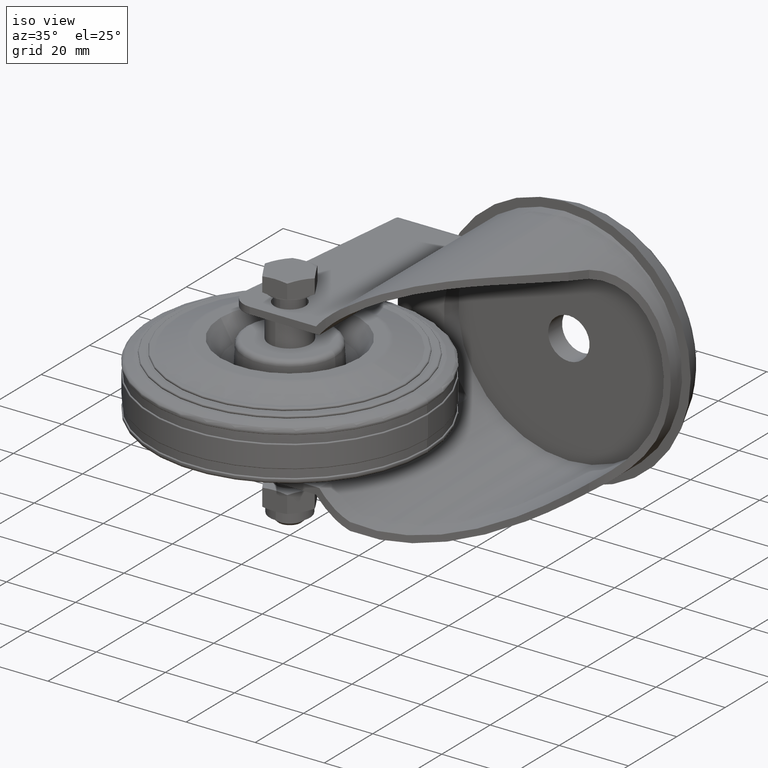
[diagram: clean part render]
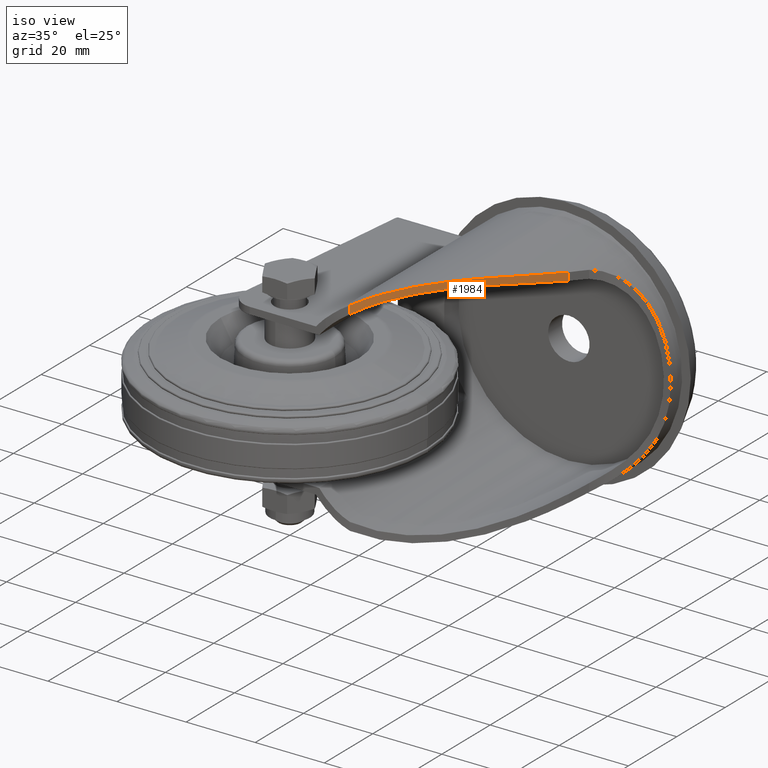
[diagram: same view with one face highlighted and labeled with its STEP entity id]
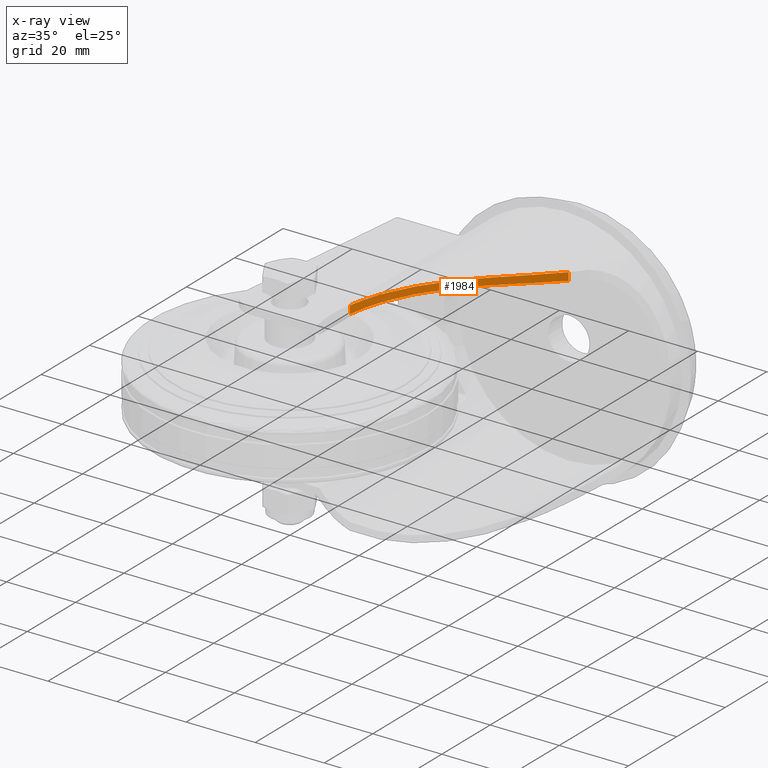
[diagram: x-ray of the same camera — body ghosted, the highlighted face saturated]
A machine part, iso view. The second image highlights one B-rep face of the part: STEP entity #1984.
The next image is the same camera in x-ray: the body ghosted, the highlighted face saturated — about 0% of this face is hidden behind the body in this view.
In plain terms, the highlighted cylindrical surface (partial cylindrical patch) has radius 97.5 mm, axis along (0, 0, -1).
Its self-contained STEP definition (entity closure, byte-faithful):
#227=B_SPLINE_CURVE_WITH_KNOTS('',3,(#3331,#3332,#3333,#3334,#3335,#3336,
#3337,#3338),.UNSPECIFIED.,.F.,.F.,(4,2,2,4),(15.4223306764817,16.8510695692948,
18.4524697312536,18.5300937925108),.UNSPECIFIED.);
#228=B_SPLINE_CURVE_WITH_KNOTS('',3,(#3342,#3343,#3344,#3345,#3346,#3347,
#3348,#3349),.UNSPECIFIED.,.F.,.F.,(4,2,2,4),(15.7205759071929,17.1996761012286,
18.8150688438671,18.8197189631016),.UNSPECIFIED.);
#229=B_SPLINE_CURVE_WITH_KNOTS('',3,(#3351,#3352,#3353,#3354,#3355,#3356,
#3357,#3358,#3359,#3360,#3361,#3362),.UNSPECIFIED.,.F.,.F.,(4,2,2,2,2,4),
(18.8197189631016,19.3707735001649,19.9264781564626,20.4821828127604,21.0378874690581,
21.1060276487434),.UNSPECIFIED.);
#230=B_SPLINE_CURVE_WITH_KNOTS('',3,(#3365,#3366,#3367,#3368,#3369,#3370,
#3371,#3372,#3373,#3374),.UNSPECIFIED.,.F.,.F.,(4,2,2,2,4),(18.5300937925108,
19.5282228261428,20.0660993735873,20.6039759210319,20.823809414868),
 .UNSPECIFIED.);
#243=CYLINDRICAL_SURFACE('',#2242,97.5000000000001);
#274=FACE_OUTER_BOUND('',#412,.T.);
#412=EDGE_LOOP('',(#1371,#1372,#1373,#1374,#1375,#1376));
#725=LINE('',#3340,#803);
#726=LINE('',#3364,#804);
#803=VECTOR('',#2566,1000.);
#804=VECTOR('',#2567,1000.);
#890=VERTEX_POINT('',#3329);
#891=VERTEX_POINT('',#3330);
#892=VERTEX_POINT('',#3339);
#893=VERTEX_POINT('',#3341);
#894=VERTEX_POINT('',#3350);
#895=VERTEX_POINT('',#3363);
#1075=EDGE_CURVE('',#890,#891,#227,.T.);
#1076=EDGE_CURVE('',#892,#890,#725,.T.);
#1077=EDGE_CURVE('',#892,#893,#228,.T.);
#1078=EDGE_CURVE('',#893,#894,#229,.T.);
#1079=EDGE_CURVE('',#894,#895,#726,.T.);
#1080=EDGE_CURVE('',#891,#895,#230,.T.);
#1371=ORIENTED_EDGE('',*,*,#1075,.F.);
#1372=ORIENTED_EDGE('',*,*,#1076,.F.);
#1373=ORIENTED_EDGE('',*,*,#1077,.T.);
#1374=ORIENTED_EDGE('',*,*,#1078,.T.);
#1375=ORIENTED_EDGE('',*,*,#1079,.T.);
#1376=ORIENTED_EDGE('',*,*,#1080,.F.);
#1984=ADVANCED_FACE('',(#274),#243,.T.);
#2242=AXIS2_PLACEMENT_3D('',#3328,#2564,#2565);
#2564=DIRECTION('center_axis',(0.,0.,-1.));
#2565=DIRECTION('ref_axis',(-1.,0.,0.));
#2566=DIRECTION('',(0.,0.,-1.));
#2567=DIRECTION('',(0.,0.,-1.));
#3328=CARTESIAN_POINT('Origin',(-36.6703213644293,71.0659921769929,50.));
#3329=CARTESIAN_POINT('',(54.7249999999999,37.1079999999999,27.8697752951114));
#3330=CARTESIAN_POINT('',(38.9999999996876,9.58223444620219,32.));
#3331=CARTESIAN_POINT('Ctrl Pts',(54.725,37.1079999999999,27.8697752951114));
#3332=CARTESIAN_POINT('Ctrl Pts',(53.0037687284677,32.4754385580787,28.8409478811205));
#3333=CARTESIAN_POINT('Ctrl Pts',(50.9290224769287,27.9773924787316,29.7980469566832));
#3334=CARTESIAN_POINT('Ctrl Pts',(45.8784591984275,18.8919727836145,31.3768625062073));
#3335=CARTESIAN_POINT('Ctrl Pts',(42.8229808602952,14.3601146748822,31.9451763857574));
#3336=CARTESIAN_POINT('Ctrl Pts',(39.3287393380329,9.98850273809089,31.9987192433976));
#3337=CARTESIAN_POINT('Ctrl Pts',(39.1652867345554,9.78565890869232,32.0000000000032));
#3338=CARTESIAN_POINT('Ctrl Pts',(38.9999999993752,9.58223444620219,32.));
#3339=CARTESIAN_POINT('',(54.7249999999999,37.1079999999998,30.1450555647191));
#3340=CARTESIAN_POINT('',(54.7249999999999,37.1079999999998,50.));
#3341=CARTESIAN_POINT('',(39.,9.5822344469711,34.));
#3342=CARTESIAN_POINT('Ctrl Pts',(54.7249999999999,37.1079999999998,30.1450555647191));
#3343=CARTESIAN_POINT('Ctrl Pts',(52.9367763064579,32.2951336122901,31.0778724746292));
#3344=CARTESIAN_POINT('Ctrl Pts',(50.7668482087623,27.6279314993504,32.0043582066109));
#3345=CARTESIAN_POINT('Ctrl Pts',(45.5419842299618,18.356898634148,33.4849070407122));
#3346=CARTESIAN_POINT('Ctrl Pts',(42.4229016622318,13.7990170754971,33.9970602236586));
#3347=CARTESIAN_POINT('Ctrl Pts',(39.0195578436418,9.60631087510295,33.9999957782533));
#3348=CARTESIAN_POINT('Ctrl Pts',(39.0097822743508,9.59427385170383,34.));
#3349=CARTESIAN_POINT('Ctrl Pts',(39.,9.5822344469711,34.));
#3350=CARTESIAN_POINT('',(22.1060000000001,-6.72600000000006,29.5058089873842));
#3351=CARTESIAN_POINT('Ctrl Pts',(39.,9.58223444697109,34.));
#3352=CARTESIAN_POINT('Ctrl Pts',(37.8407680766805,8.15552509458133,34.));
#3353=CARTESIAN_POINT('Ctrl Pts',(36.5866012908435,6.69600466230377,33.9402144069883));
#3354=CARTESIAN_POINT('Ctrl Pts',(33.9362241212416,3.79896815380435,33.6474470831065));
#3355=CARTESIAN_POINT('Ctrl Pts',(32.5388782854763,2.36180929929455,33.4125535767));
#3356=CARTESIAN_POINT('Ctrl Pts',(29.689694003885,-0.393971357091996,32.7332102178782));
#3357=CARTESIAN_POINT('Ctrl Pts',(28.2370763960878,-1.71345940066644,32.2880707839268));
#3358=CARTESIAN_POINT('Ctrl Pts',(25.3690959630271,-4.17315689749539,31.1858701133169));
#3359=CARTESIAN_POINT('Ctrl Pts',(23.9539870845531,-5.31348344149757,30.5284094510538));
#3360=CARTESIAN_POINT('Ctrl Pts',(22.441088141002,-6.47196359100117,29.6957575492268));
#3361=CARTESIAN_POINT('Ctrl Pts',(22.2742165995112,-6.59890269043125,29.6021239616103));
#3362=CARTESIAN_POINT('Ctrl Pts',(22.1060000000001,-6.72600000000009,29.5058089873842));
#3363=CARTESIAN_POINT('',(22.1060000000001,-6.72600000000006,27.1770631967474));
#3364=CARTESIAN_POINT('',(22.1060000000001,-6.72600000000006,50.));
#3365=CARTESIAN_POINT('Ctrl Pts',(38.9999999993752,9.58223444620218,32.));
#3366=CARTESIAN_POINT('Ctrl Pts',(36.8746604257208,6.96650088531897,31.9999999999585));
#3367=CARTESIAN_POINT('Ctrl Pts',(34.4368324303762,4.26225391805962,31.7795004940813));
#3368=CARTESIAN_POINT('Ctrl Pts',(30.5356497120918,0.402703704725746,30.8920316966242));
#3369=CARTESIAN_POINT('Ctrl Pts',(29.142308261685,-0.894484051219123,30.4792697786798));
#3370=CARTESIAN_POINT('Ctrl Pts',(26.3900183948219,-3.31818562014282,29.4473825100146));
#3371=CARTESIAN_POINT('Ctrl Pts',(25.0313067390661,-4.44480118910505,28.8278647202671));
#3372=CARTESIAN_POINT('Ctrl Pts',(23.2073544787291,-5.88443618059793,27.8380109793719));
#3373=CARTESIAN_POINT('Ctrl Pts',(22.6604671736372,-6.30706818103376,27.5217350387199));
#3374=CARTESIAN_POINT('Ctrl Pts',(22.1060000000001,-6.72600000000009,27.1770631967474));